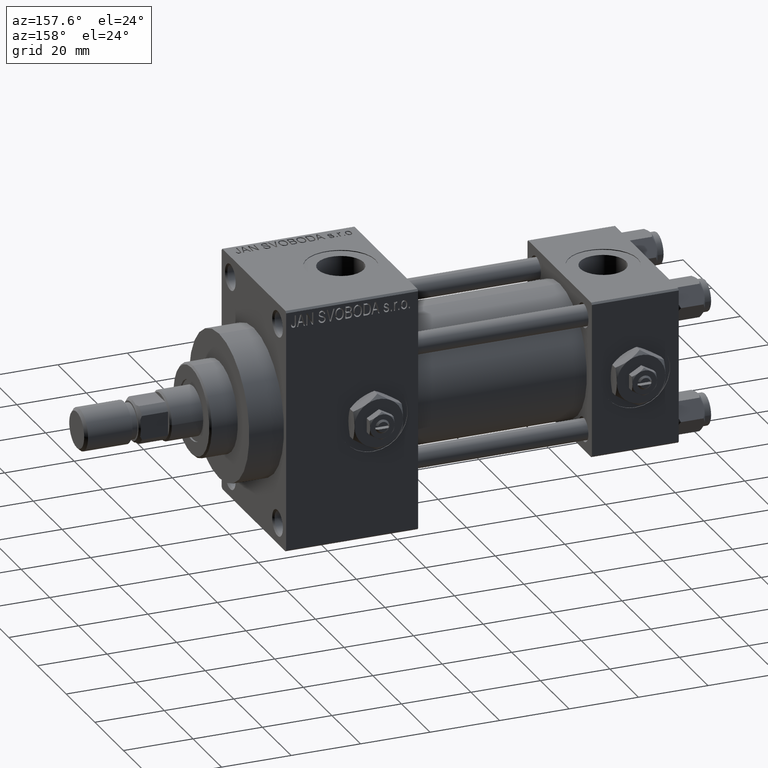
[diagram: clean part render]
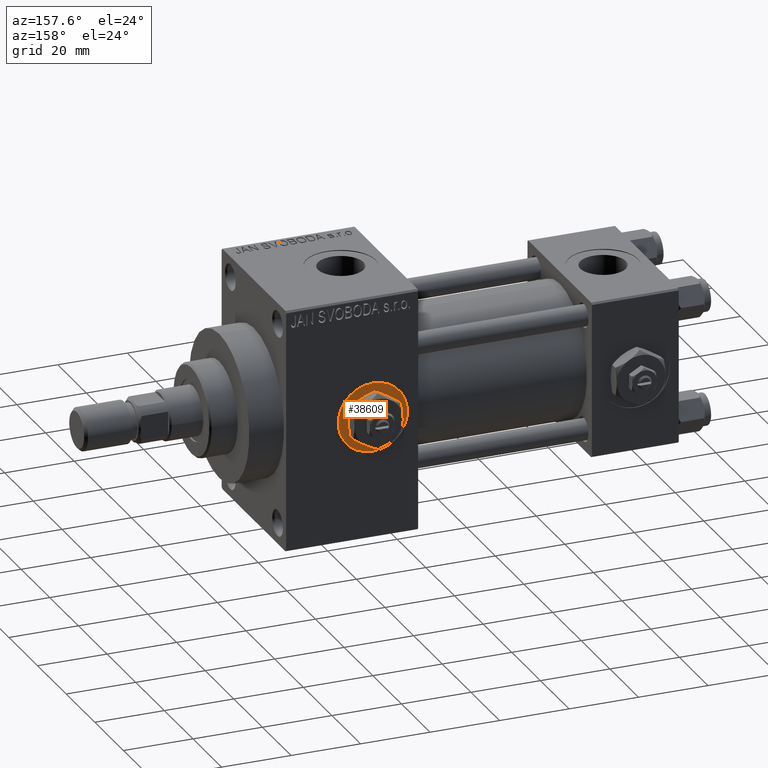
[diagram: same view with one face highlighted and labeled with its STEP entity id]
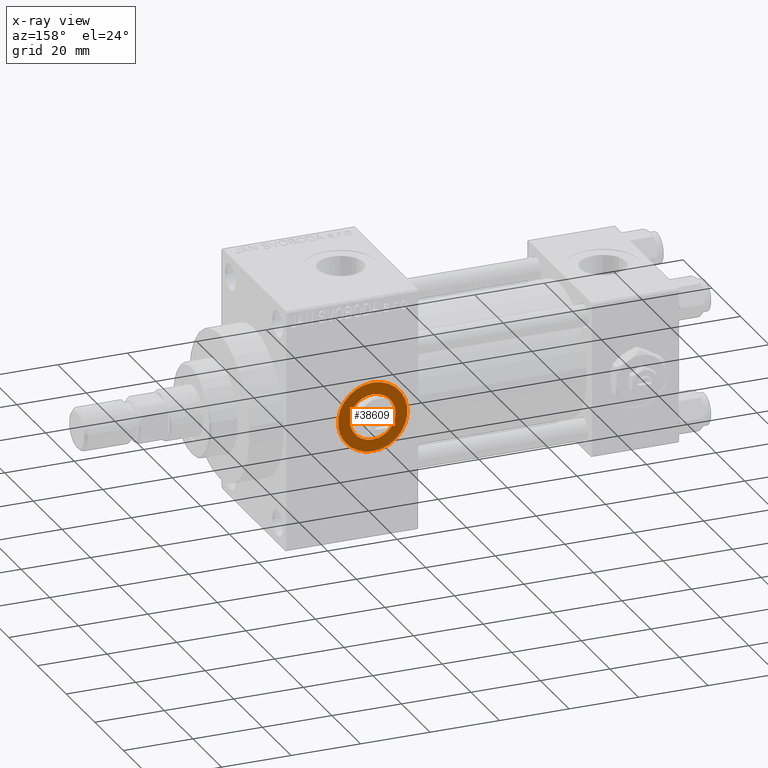
[diagram: x-ray of the same camera — body ghosted, the highlighted face saturated]
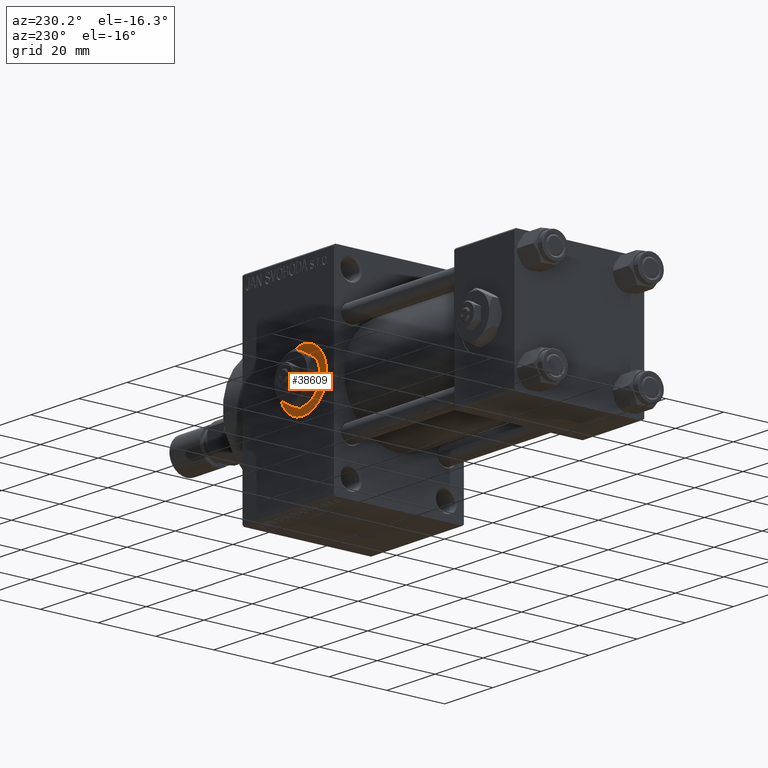
[diagram: same view with one face highlighted and labeled with its STEP entity id]
A machine part, auxiliary view. The second image highlights one B-rep face of the part: STEP entity #38609.
The next image is the same camera in x-ray: the body ghosted, the highlighted face saturated — about 0% of this face is hidden behind the body in this view.
A second angle (auxiliary view) of the same face is appended — the face is thin or edge-on in the first view.
In plain terms, the highlighted planar face has unit normal (0, 1, 0).
Its self-contained STEP definition (entity closure, byte-faithful):
#1534 = DIRECTION ( 'NONE',  ( 0.000000000000000000, 1.000000000000000000, 0.000000000000000000 ) ) ;
#2778 = EDGE_CURVE ( 'NONE', #34773, #12687, #29750, .T. ) ;
#4765 = CARTESIAN_POINT ( 'NONE',  ( 88.00000000000001421, 22.29999999999999716, 9.999999999999994671 ) ) ;
#5016 = EDGE_LOOP ( 'NONE', ( #27091, #42257 ) ) ;
#7388 = FACE_OUTER_BOUND ( 'NONE', #24596, .T. ) ;
#9771 = DIRECTION ( 'NONE',  ( 0.000000000000000000, 0.000000000000000000, 1.000000000000000000 ) ) ;
#10862 = CARTESIAN_POINT ( 'NONE',  ( 88.00000000000001421, 22.29999999999999716, 0.000000000000000000 ) ) ;
#11356 = DIRECTION ( 'NONE',  ( 0.000000000000000000, 1.000000000000000000, 0.000000000000000000 ) ) ;
#12687 = VERTEX_POINT ( 'NONE', #41615 ) ;
#12993 = EDGE_CURVE ( 'NONE', #23811, #48812, #14759, .T. ) ;
#14759 = CIRCLE ( 'NONE', #42751, 6.580000000000002736 ) ;
#15418 = PLANE ( 'NONE',  #38269 ) ;
#15992 = DIRECTION ( 'NONE',  ( 0.000000000000000000, 1.000000000000000000, 0.000000000000000000 ) ) ;
#16353 = CARTESIAN_POINT ( 'NONE',  ( 88.00000000000001421, 22.29999999999999716, 0.000000000000000000 ) ) ;
#19738 = DIRECTION ( 'NONE',  ( 0.000000000000000000, 0.000000000000000000, 1.000000000000000000 ) ) ;
#20428 = AXIS2_PLACEMENT_3D ( 'NONE', #10862, #11356, #26128 ) ;
#22022 = DIRECTION ( 'NONE',  ( 0.000000000000000000, 1.000000000000000000, 0.000000000000000000 ) ) ;
#23811 = VERTEX_POINT ( 'NONE', #48140 ) ;
#24596 = EDGE_LOOP ( 'NONE', ( #39262, #31609 ) ) ;
#24865 = CARTESIAN_POINT ( 'NONE',  ( 88.00000000000001421, 22.29999999999999716, -6.580000000000002736 ) ) ;
#25031 = CARTESIAN_POINT ( 'NONE',  ( 88.00000000000001421, 22.29999999999999716, 0.000000000000000000 ) ) ;
#25920 = DIRECTION ( 'NONE',  ( 0.000000000000000000, 1.000000000000000000, 0.000000000000000000 ) ) ;
#26128 = DIRECTION ( 'NONE',  ( 0.000000000000000000, 0.000000000000000000, 1.000000000000000000 ) ) ;
#27091 = ORIENTED_EDGE ( 'NONE', *, *, #12993, .F. ) ;
#27242 = CARTESIAN_POINT ( 'NONE',  ( 88.00000000000001421, 22.29999999999999716, 0.000000000000000000 ) ) ;
#27647 = AXIS2_PLACEMENT_3D ( 'NONE', #16353, #1534, #31612 ) ;
#27846 = EDGE_CURVE ( 'NONE', #12687, #34773, #30035, .T. ) ;
#29194 = EDGE_CURVE ( 'NONE', #48812, #23811, #40452, .T. ) ;
#29750 = CIRCLE ( 'NONE', #37742, 9.999999999999994671 ) ;
#30035 = CIRCLE ( 'NONE', #20428, 9.999999999999994671 ) ;
#31609 = ORIENTED_EDGE ( 'NONE', *, *, #27846, .T. ) ;
#31612 = DIRECTION ( 'NONE',  ( 0.000000000000000000, 0.000000000000000000, 1.000000000000000000 ) ) ;
#34773 = VERTEX_POINT ( 'NONE', #4765 ) ;
#37202 = CARTESIAN_POINT ( 'NONE',  ( 88.00000000000001421, 22.29999999999999716, 0.000000000000000000 ) ) ;
#37742 = AXIS2_PLACEMENT_3D ( 'NONE', #27242, #15992, #19738 ) ;
#38269 = AXIS2_PLACEMENT_3D ( 'NONE', #37202, #25920, #38945 ) ;
#38609 = ADVANCED_FACE ( 'NONE', ( #41719, #7388 ), #15418, .T. ) ;
#38945 = DIRECTION ( 'NONE',  ( 0.000000000000000000, -0.000000000000000000, 1.000000000000000000 ) ) ;
#39262 = ORIENTED_EDGE ( 'NONE', *, *, #2778, .T. ) ;
#40452 = CIRCLE ( 'NONE', #27647, 6.580000000000002736 ) ;
#41615 = CARTESIAN_POINT ( 'NONE',  ( 88.00000000000001421, 22.29999999999999716, -9.999999999999994671 ) ) ;
#41719 = FACE_BOUND ( 'NONE', #5016, .T. ) ;
#42257 = ORIENTED_EDGE ( 'NONE', *, *, #29194, .F. ) ;
#42751 = AXIS2_PLACEMENT_3D ( 'NONE', #25031, #22022, #9771 ) ;
#48140 = CARTESIAN_POINT ( 'NONE',  ( 88.00000000000001421, 22.29999999999999716, 6.580000000000002736 ) ) ;
#48812 = VERTEX_POINT ( 'NONE', #24865 ) ;